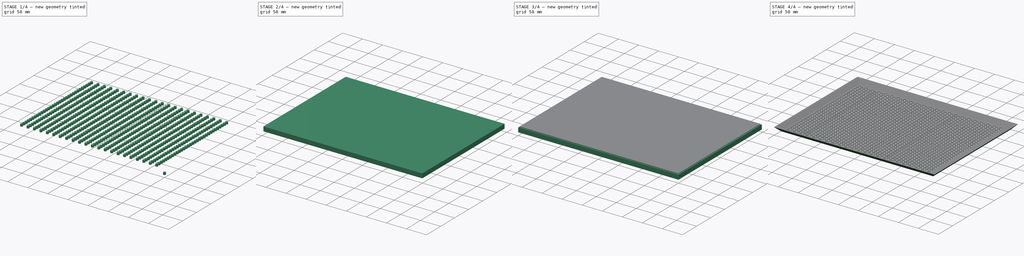
[diagram: build sequence overview — one tinted view per stage of 4, left to right]
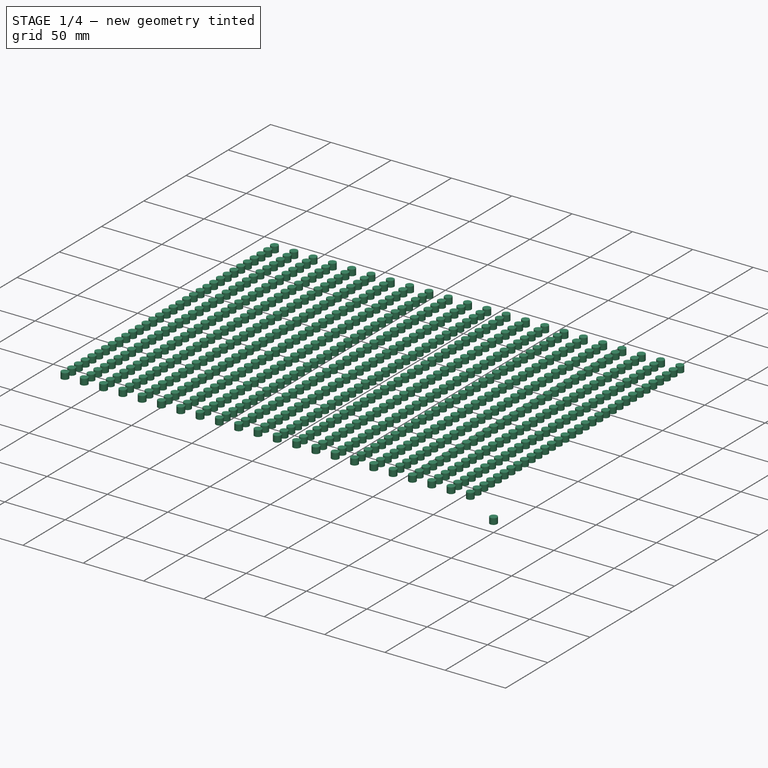
[diagram: stage 1 of 4 — iso view after this stage's code; geometry added in this stage tinted green]
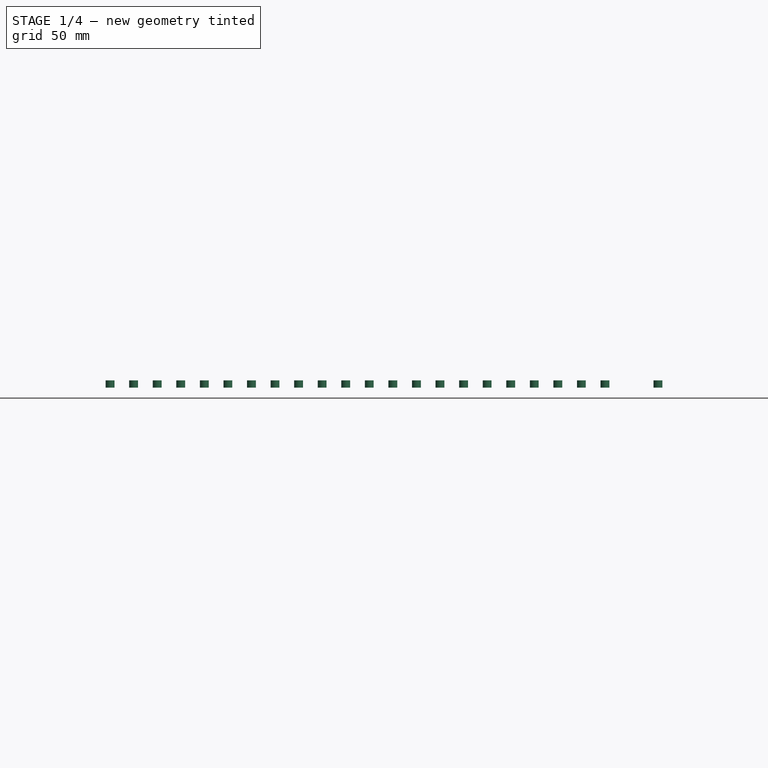
[diagram: stage 1 of 4 — front view after this stage's code; geometry added in this stage tinted green]
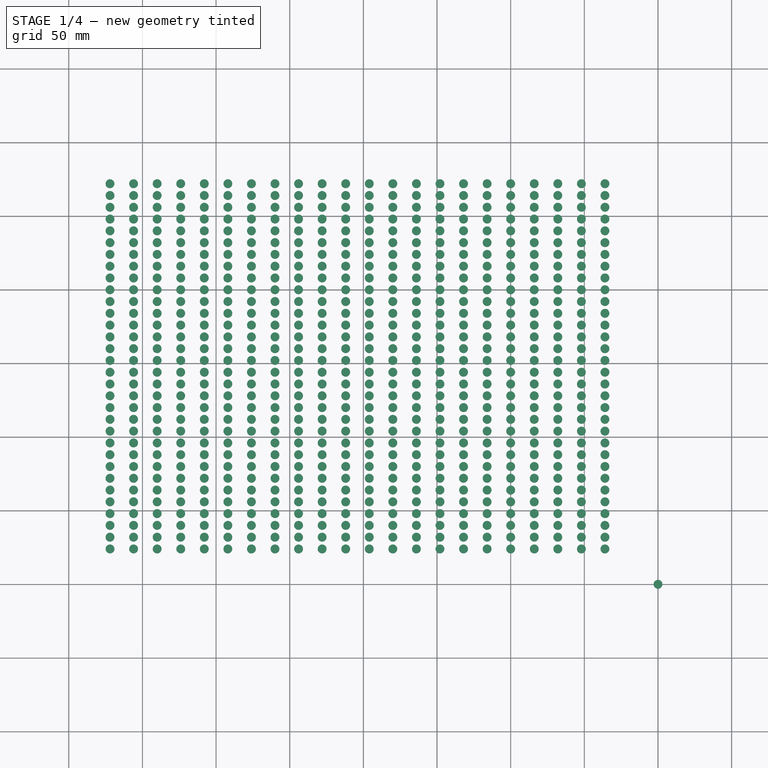
[diagram: stage 1 of 4 — top view after this stage's code; geometry added in this stage tinted green]
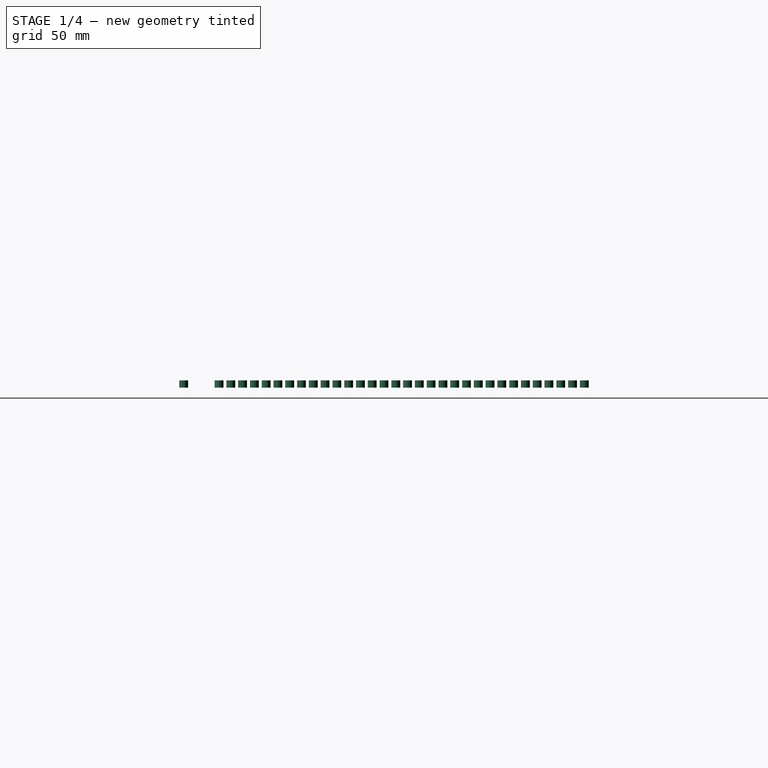
[diagram: stage 1 of 4 — right view after this stage's code; geometry added in this stage tinted green]
FCSTD DOCUMENT  (FreeCAD 0.15R4671 (Git))
Label: oven-aluminum-plate
License: All rights reserved
LicenseURL: http://en.wikipedia.org/wiki/All_rights_reserved
objects: Sketcher::SketchObject×2, PartDesign::Pad×2, PartDesign::Chamfer×2, Part::Cut×2, Part::Cylinder×2, Part::FeaturePython×2, Part::MultiFuse×1
note: 15 computed .brp shape members not serialized (recipe doc carries the construction recipe); baked Part::Feature solids carry a one-line shape summary decoded from their .brp

FEATURE [Part::Cylinder] Cylinder  label="Cylindre"
  Angle = 360
  Height = 5
  Radius = 3
FEATURE [Part::Cylinder] Cylinder001  label="Cylindre001"
  Angle = 360
  Height = 5
  Placement = pos=(-372,24,0) rot=(0,0,1;0rad)
  Radius = 3
FEATURE [Part::FeaturePython] Array001  # Draft array (typed FeaturePython)
  Angle = 360
  ArrayType = 0
  Axis = (0,0,1)
  Base = -> Cylinder001
  Center = (0,0,0)
  Fuse = false
  IntervalAxis = (0,0,0)
  IntervalX = (16,0,0)
  IntervalY = (0,8,0)
  IntervalZ = (0,0,0)
  NumberPolar = 1
  NumberX = 22
  NumberY = 32
  NumberZ = 1
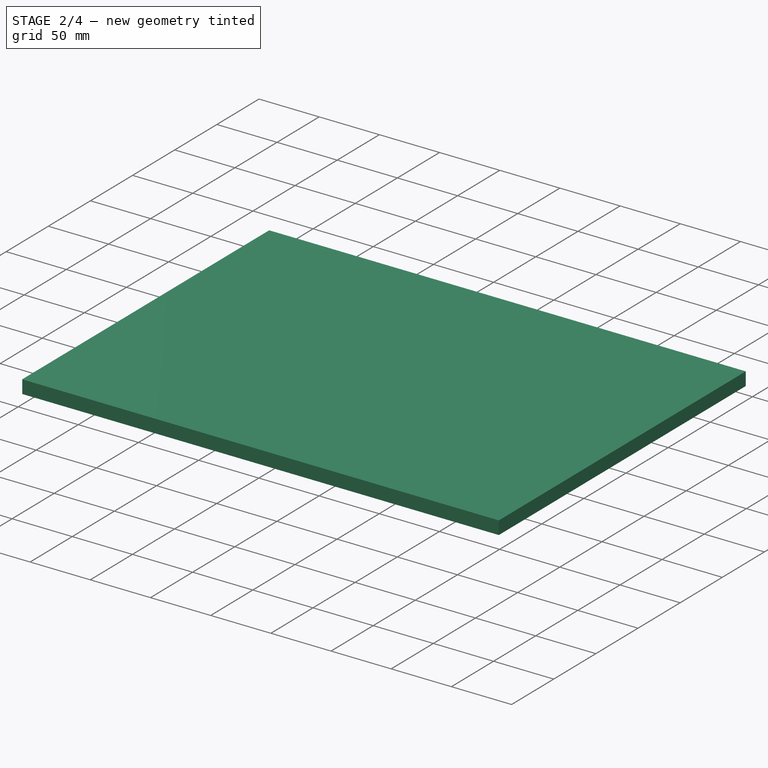
[diagram: stage 2 of 4 — iso view after this stage's code; geometry added in this stage tinted green]
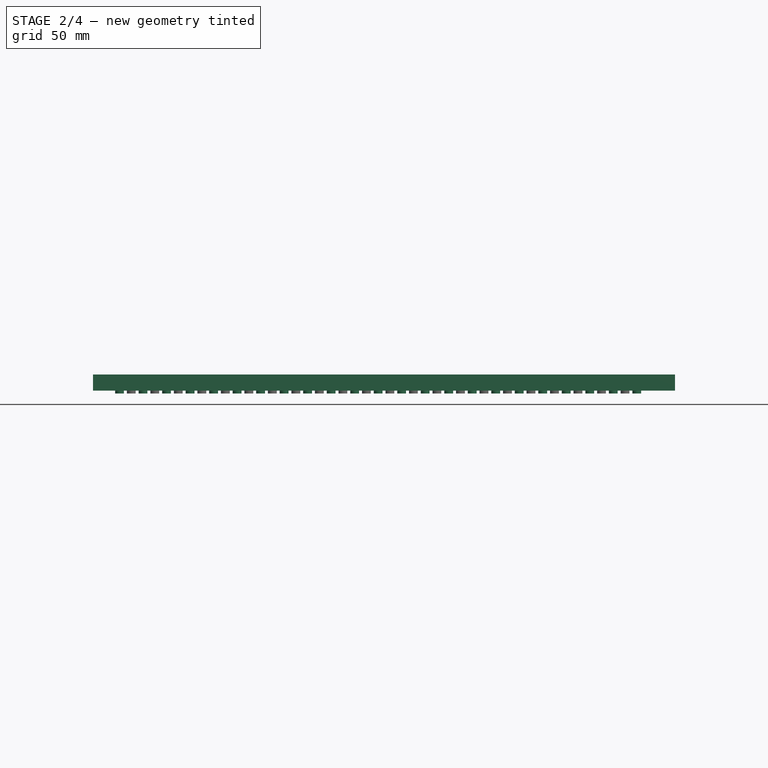
[diagram: stage 2 of 4 — front view after this stage's code; geometry added in this stage tinted green]
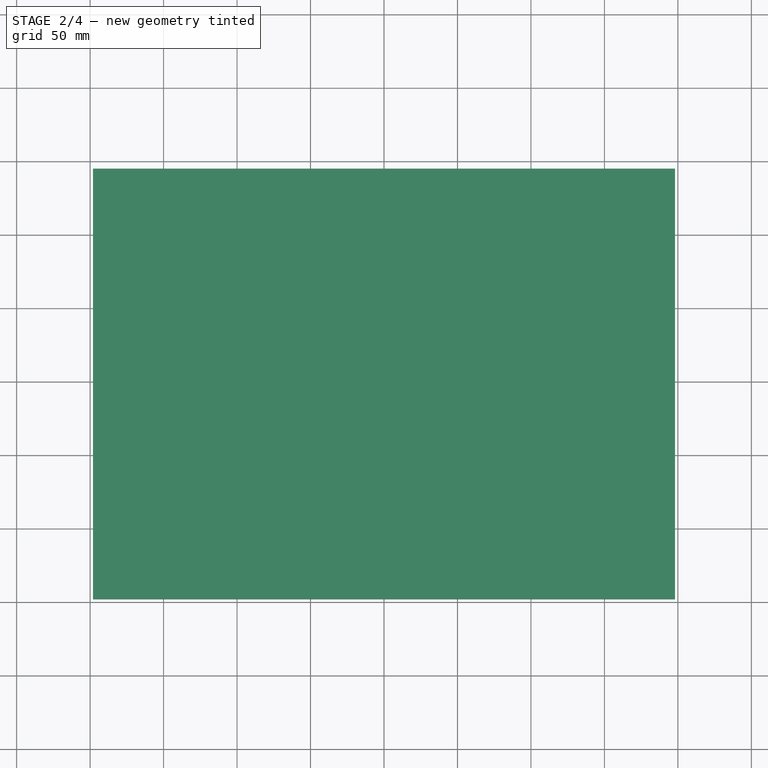
[diagram: stage 2 of 4 — top view after this stage's code; geometry added in this stage tinted green]
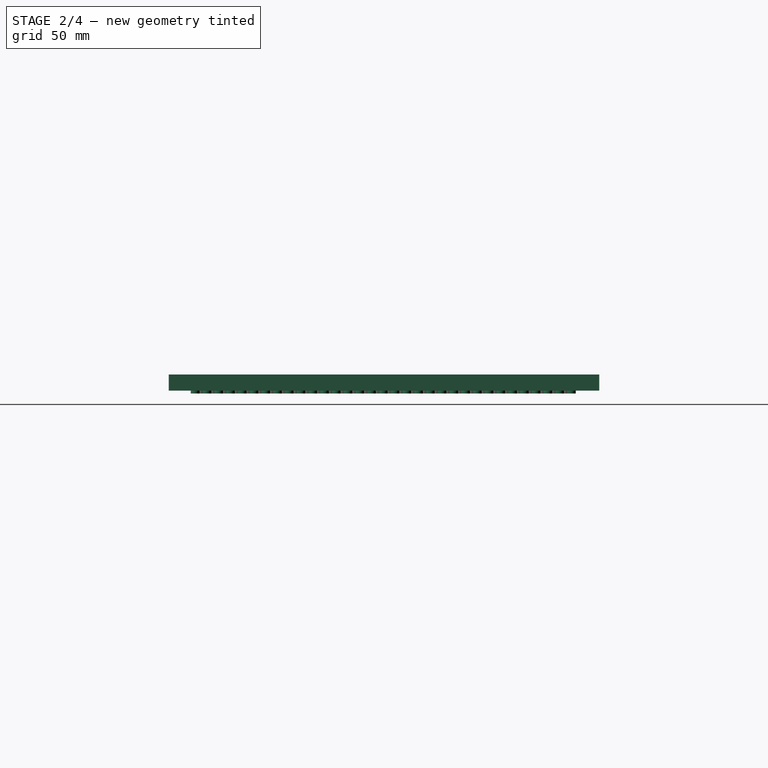
[diagram: stage 2 of 4 — right view after this stage's code; geometry added in this stage tinted green]
FEATURE [Sketcher::SketchObject] Sketch001
  Placement = pos=(0,0,2) rot=(0,0,1;0rad)
  sketch-geometry (4):
    g0: LineSegment StartX=-2 StartY=2 StartZ=0 EndX=-398 EndY=2 EndZ=0
    g1: LineSegment StartX=-398 StartY=2 StartZ=0 EndX=-398 EndY=295 EndZ=0
    g2: LineSegment StartX=-398 StartY=295 StartZ=0 EndX=-2 EndY=295 EndZ=0
    g3: LineSegment StartX=-2 StartY=295 StartZ=0 EndX=-2 EndY=2 EndZ=0
  constraints (12):
    c: Coincident(g0,g1)
    c: Coincident(g1,g2)
    c: Coincident(g2,g3)
    c: Coincident(g3,g0)
    c: Horizontal(g0)
    c: Horizontal(g2)
    c: Vertical(g1)
    c: Vertical(g3)
    c: DistanceX(g-1,g0) = -2
    c: DistanceY(g-1,g0) = 2
    c: DistanceX(g0,g0) = 396
    c: DistanceY(g0,g2) = 293
FEATURE [PartDesign::Pad] Pad001
  Length = 11
  Length2 = 100
  Placement = pos=(0,0,2) rot=(0,0,1;0rad)
  Sketch = -> Sketch001
  Type = 0
FEATURE [Part::FeaturePython] Array  # Draft array (typed FeaturePython)
  Angle = 360
  ArrayType = 0
  Axis = (0,0,1)
  Base = -> Cylinder
  Center = (0,0,0)
  Fuse = false
  IntervalAxis = (0,0,0)
  IntervalX = (16,0,0)
  IntervalY = (0,8,0)
  IntervalZ = (0,0,0)
  NumberPolar = 1
  NumberX = 23
  NumberY = 33
  NumberZ = 1
  Placement = pos=(-380,20,0) rot=(0,0,1;0rad)
FEATURE [Part::MultiFuse] Fusion
  Shapes = -> [Array001,Array]
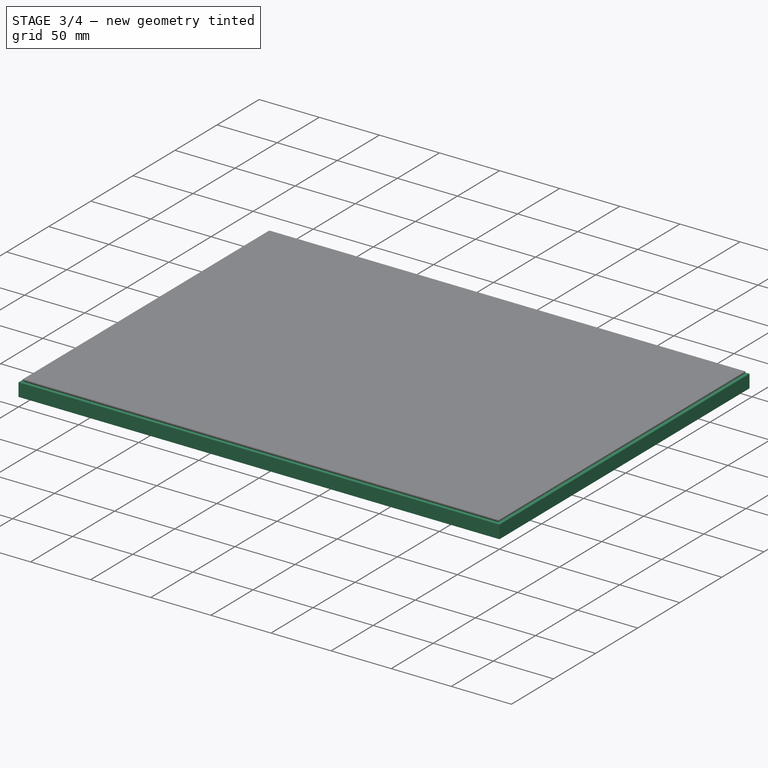
[diagram: stage 3 of 4 — iso view after this stage's code; geometry added in this stage tinted green]
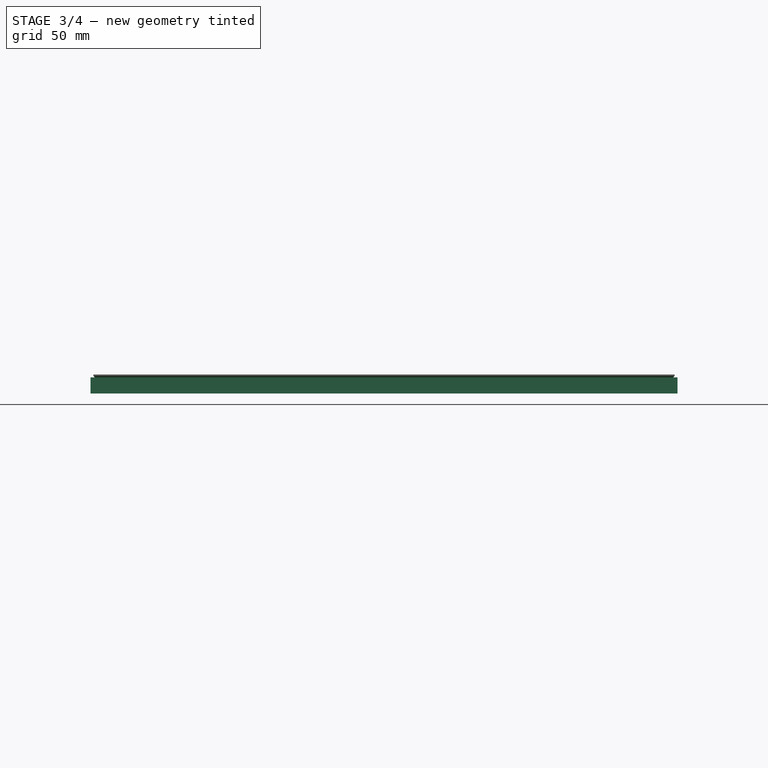
[diagram: stage 3 of 4 — front view after this stage's code; geometry added in this stage tinted green]
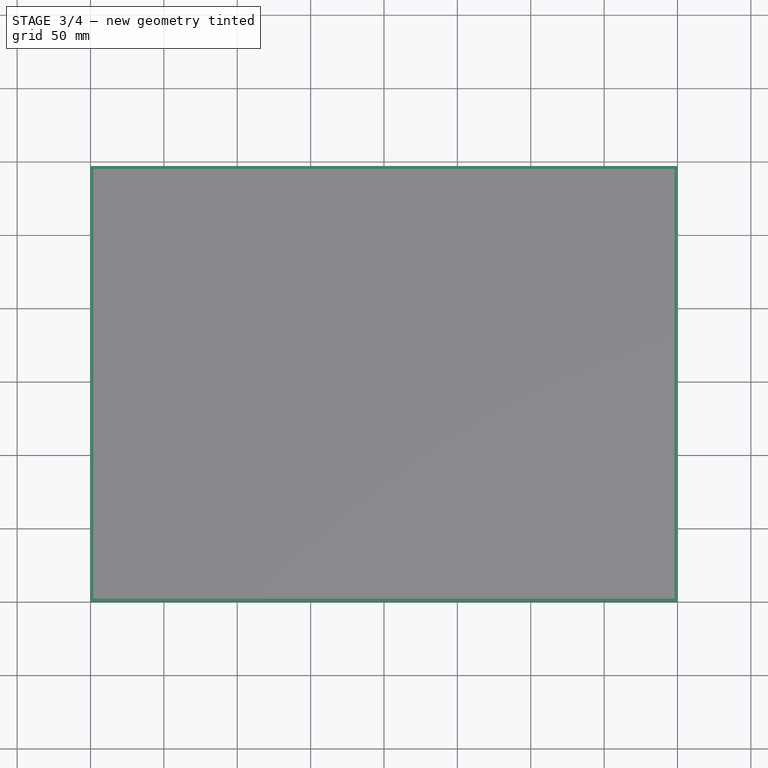
[diagram: stage 3 of 4 — top view after this stage's code; geometry added in this stage tinted green]
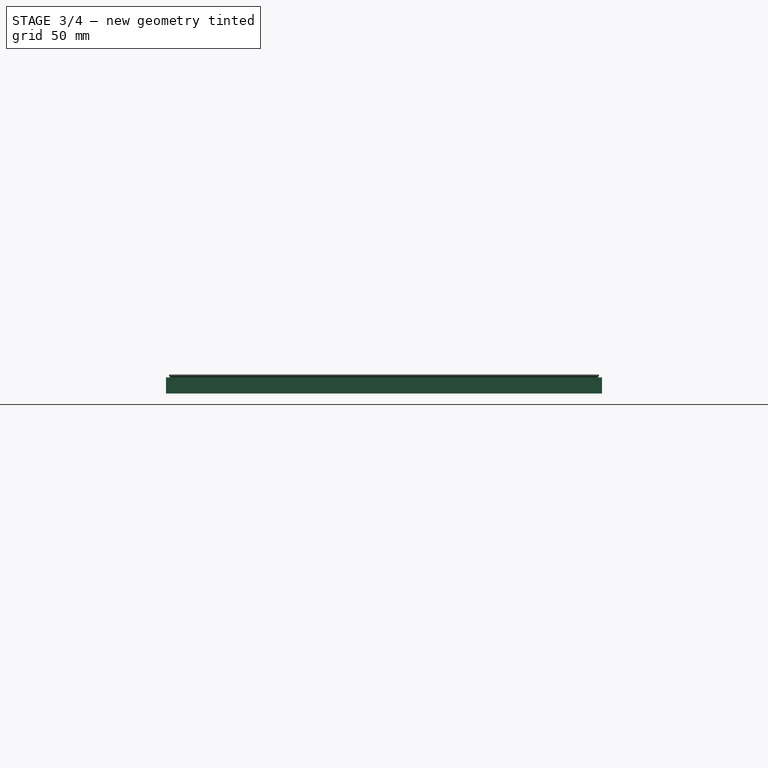
[diagram: stage 3 of 4 — right view after this stage's code; geometry added in this stage tinted green]
FEATURE [Sketcher::SketchObject] Sketch
  sketch-geometry (4):
    g0: LineSegment StartX=0 StartY=0 StartZ=0 EndX=-400 EndY=0 EndZ=0
    g1: LineSegment StartX=-400 StartY=0 StartZ=0 EndX=-400 EndY=297 EndZ=0
    g2: LineSegment StartX=-400 StartY=297 StartZ=0 EndX=0 EndY=297 EndZ=0
    g3: LineSegment StartX=0 StartY=297 StartZ=0 EndX=0 EndY=0 EndZ=0
  constraints (11):
    c: Coincident(g0,g1)
    c: Coincident(g1,g2)
    c: Coincident(g2,g3)
    c: Coincident(g3,g0)
    c: Horizontal(g0)
    c: Horizontal(g2)
    c: Vertical(g1)
    c: Vertical(g3)
    c: Coincident(g0,g-1)
    c: DistanceX(g-1,g0) = -400
    c: DistanceY(g0,g1) = 297
FEATURE [PartDesign::Pad] Pad
  Length = 11
  Length2 = 100
  Sketch = -> Sketch
  Type = 0
FEATURE [PartDesign::Chamfer] Chamfer001
  Base = -> Pad001 [Edge3,Edge11,Edge9,Edge6]
  Placement = pos=(0,0,2) rot=(0,0,1;0rad)
  Size = 10
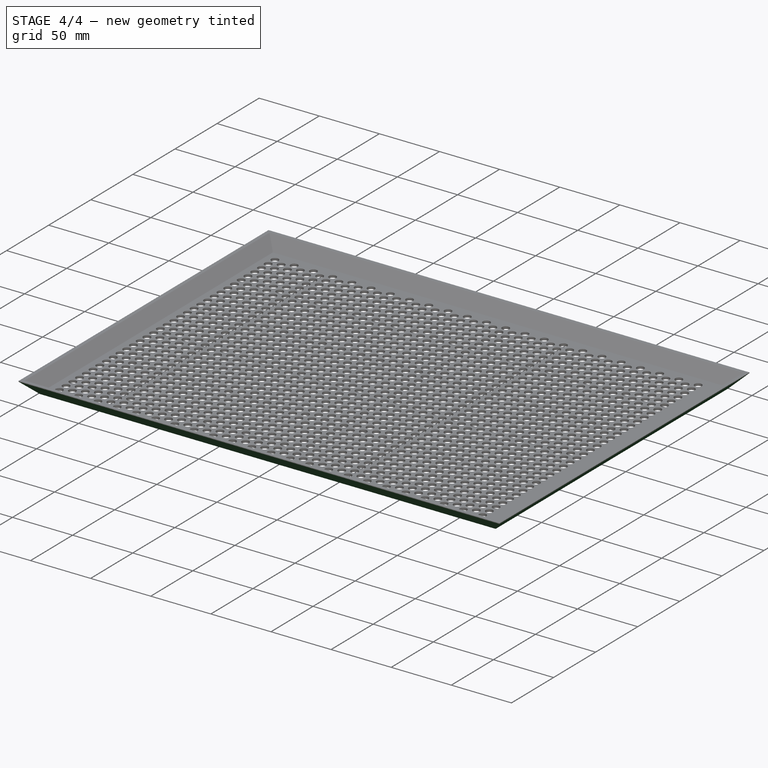
[diagram: stage 4 of 4 — iso view after this stage's code; geometry added in this stage tinted green]
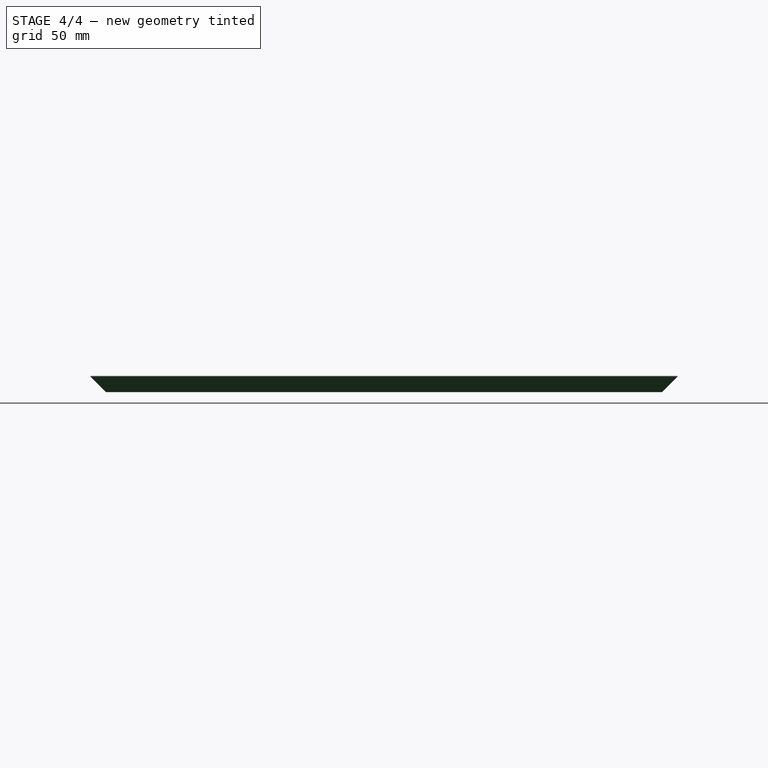
[diagram: stage 4 of 4 — front view after this stage's code; geometry added in this stage tinted green]
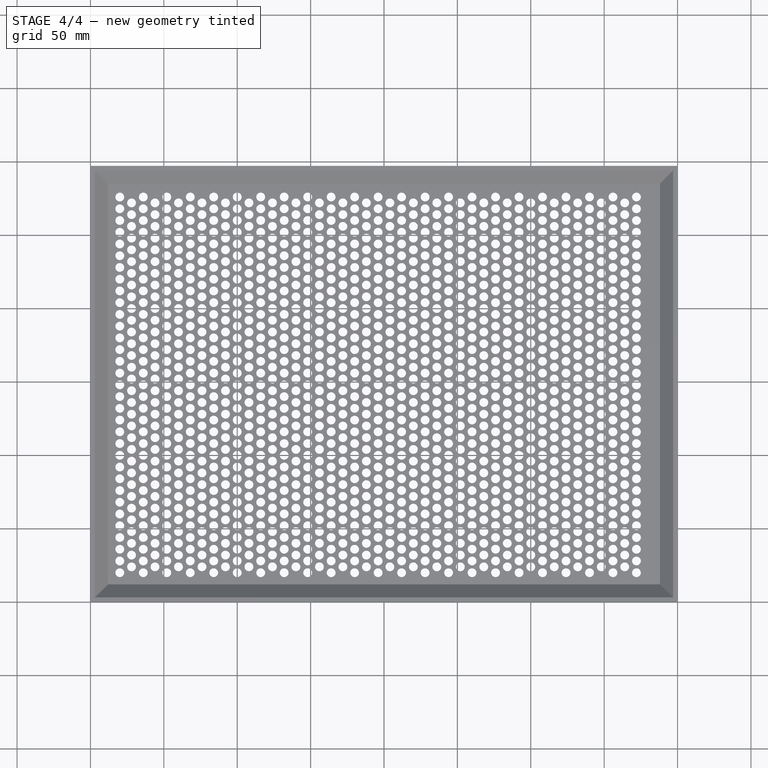
[diagram: stage 4 of 4 — top view after this stage's code; geometry added in this stage tinted green]
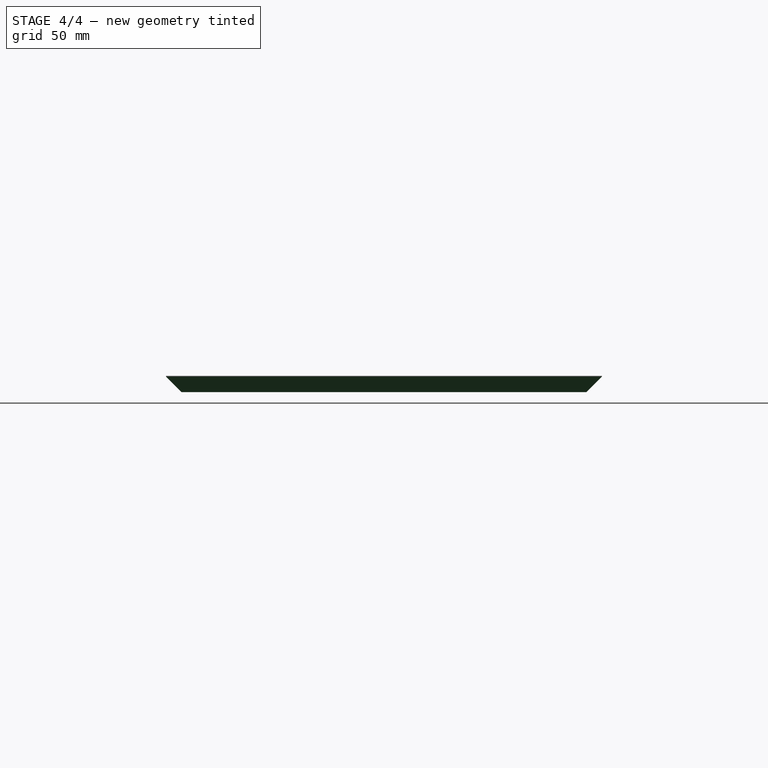
[diagram: stage 4 of 4 — right view after this stage's code; geometry added in this stage tinted green]
FEATURE [PartDesign::Chamfer] Chamfer
  Base = -> Pad [Edge9,Edge6,Edge3,Edge11]
  Size = 10.5
FEATURE [Part::Cut] Cut
  Base = -> Chamfer
  Tool = -> Chamfer001
FEATURE [Part::Cut] Cut001
  Base = -> Cut
  Tool = -> Fusion
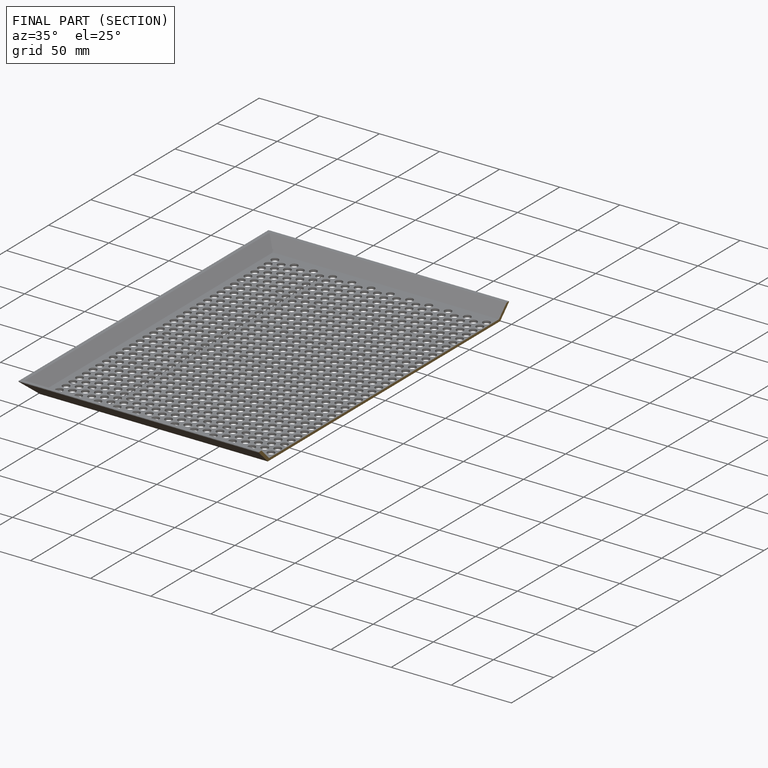
[diagram: finished part — half-section view (interior)]
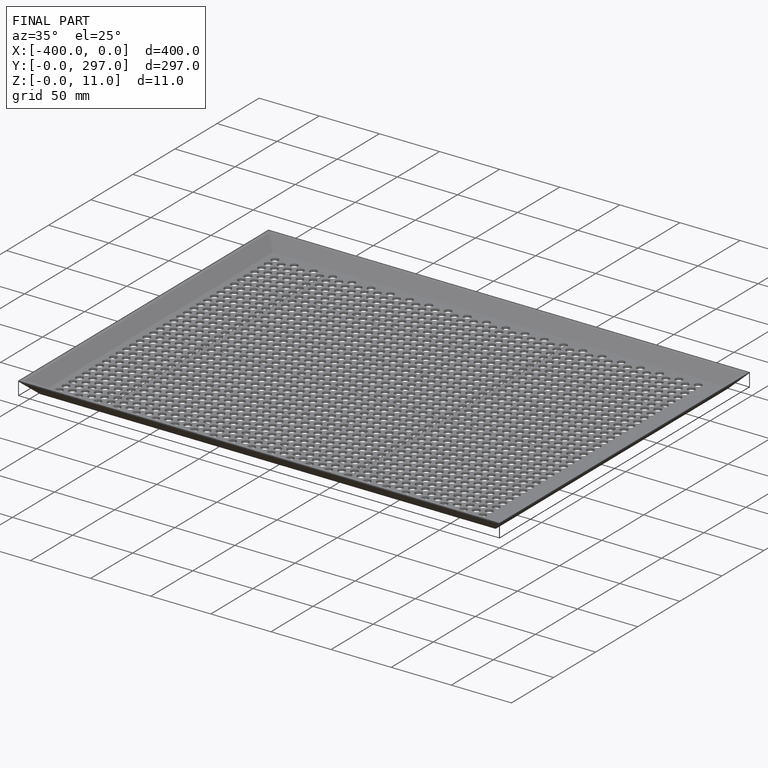
[diagram: finished part — iso view with bounding-box wireframe]
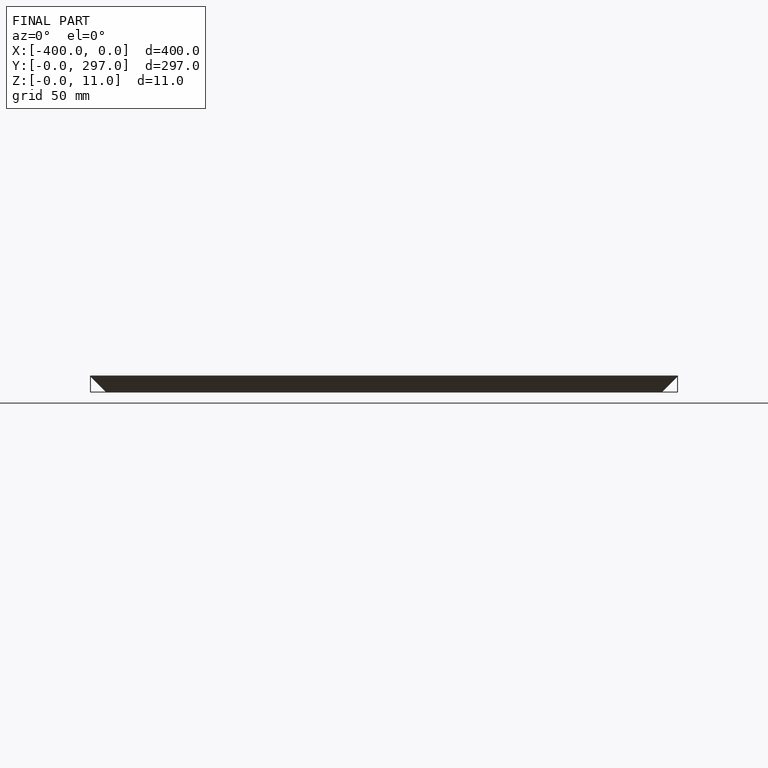
[diagram: finished part — front view with bounding-box wireframe]
